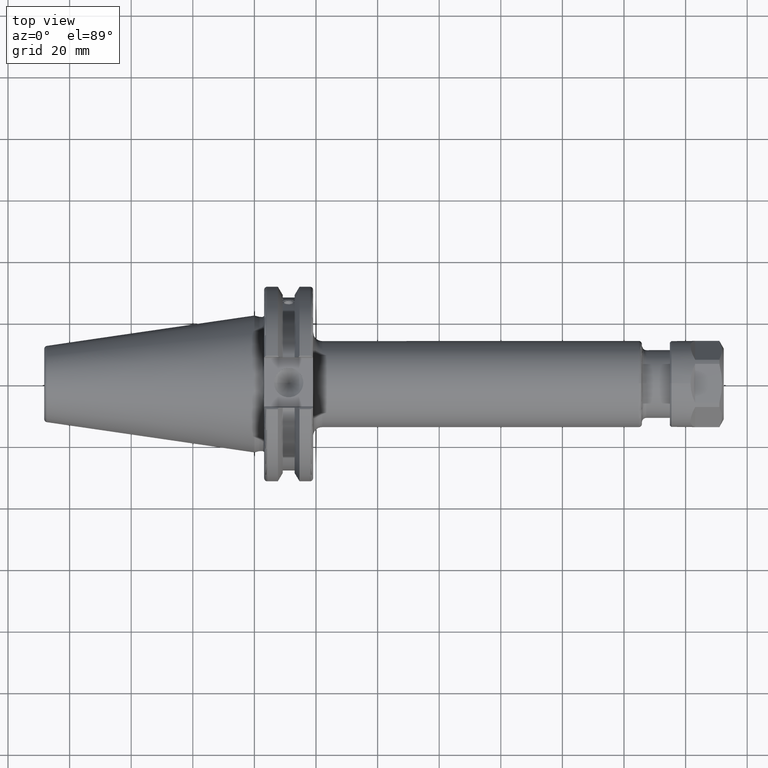
[diagram: clean part render]
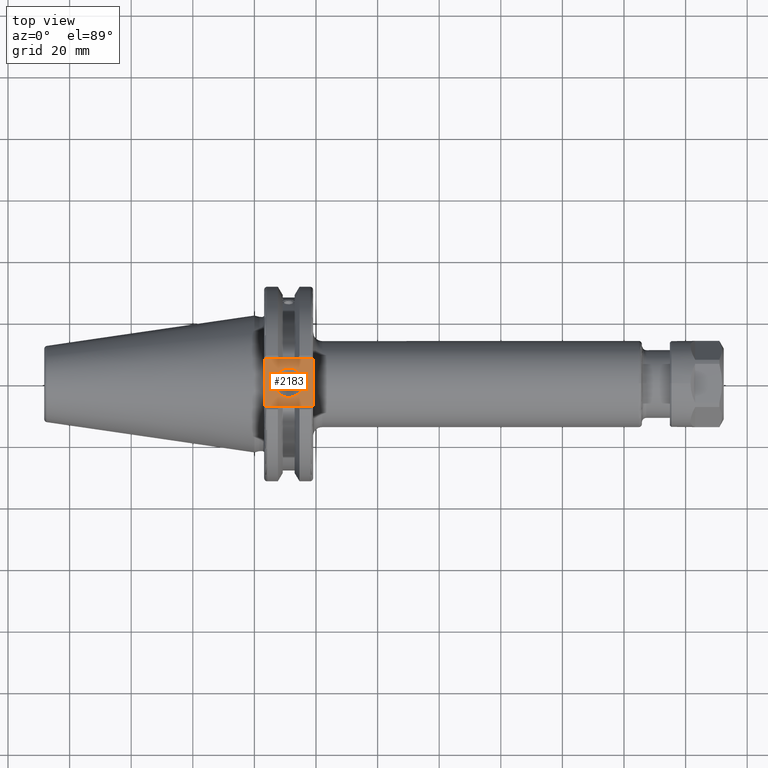
[diagram: same view with one face highlighted and labeled with its STEP entity id]
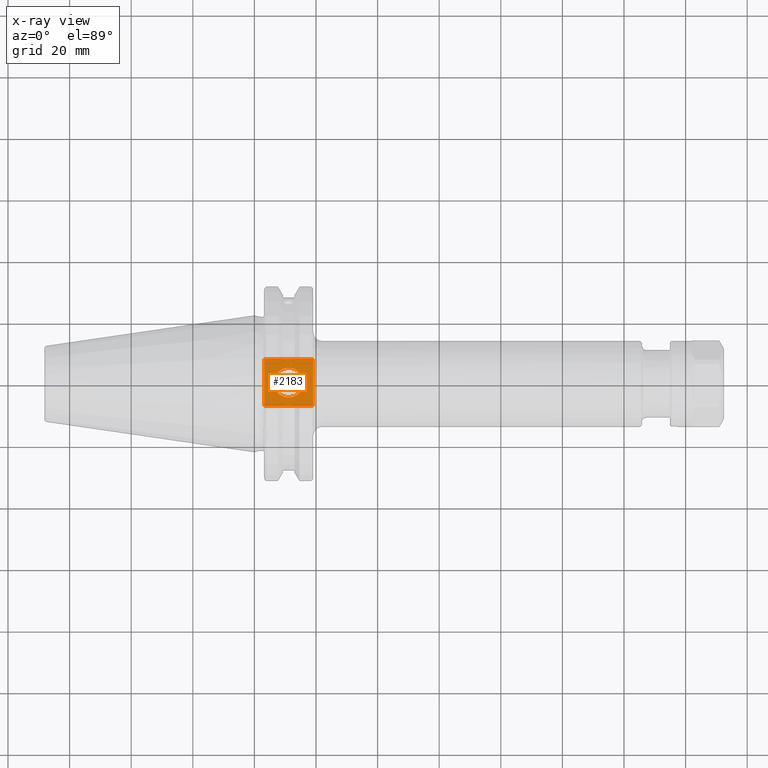
[diagram: x-ray of the same camera — body ghosted, the highlighted face saturated]
A machine part, top view. The second image highlights one B-rep face of the part: STEP entity #2183.
The next image is the same camera in x-ray: the body ghosted, the highlighted face saturated — about 0% of this face is hidden behind the body in this view.
In plain terms, the highlighted planar face has unit normal (0, 0, 1).
Its self-contained STEP definition (entity closure, byte-faithful):
#168=FACE_BOUND('',#491,.T.);
#211=PLANE('',#2477);
#353=FACE_OUTER_BOUND('',#490,.T.);
#490=EDGE_LOOP('',(#1899,#1900,#1901,#1902));
#491=EDGE_LOOP('',(#1903));
#546=LINE('',#3369,#678);
#586=LINE('',#3709,#718);
#617=LINE('',#3944,#749);
#619=LINE('',#3947,#751);
#678=VECTOR('',#2651,10.);
#718=VECTOR('',#2849,10.);
#749=VECTOR('',#2946,10.);
#751=VECTOR('',#2950,10.);
#872=CIRCLE('',#2462,4.7625);
#939=VERTEX_POINT('',#3366);
#940=VERTEX_POINT('',#3368);
#1018=VERTEX_POINT('',#3706);
#1019=VERTEX_POINT('',#3708);
#1065=VERTEX_POINT('',#3977);
#1161=EDGE_CURVE('',#939,#940,#546,.T.);
#1267=EDGE_CURVE('',#1018,#1019,#586,.T.);
#1333=EDGE_CURVE('',#940,#1018,#617,.T.);
#1335=EDGE_CURVE('',#1019,#939,#619,.T.);
#1347=EDGE_CURVE('',#1065,#1065,#872,.T.);
#1899=ORIENTED_EDGE('',*,*,#1333,.F.);
#1900=ORIENTED_EDGE('',*,*,#1161,.F.);
#1901=ORIENTED_EDGE('',*,*,#1335,.F.);
#1902=ORIENTED_EDGE('',*,*,#1267,.F.);
#1903=ORIENTED_EDGE('',*,*,#1347,.T.);
#2183=ADVANCED_FACE('',(#353,#168),#211,.T.);
#2462=AXIS2_PLACEMENT_3D('',#3978,#2982,#2983);
#2477=AXIS2_PLACEMENT_3D('',#3994,#3013,#3014);
#2651=DIRECTION('',(0.,-1.,0.));
#2849=DIRECTION('',(0.,1.,0.));
#2946=DIRECTION('',(-1.,1.31581988103722E-16,0.));
#2950=DIRECTION('',(1.,0.,0.));
#2982=DIRECTION('center_axis',(0.,0.,-1.));
#2983=DIRECTION('ref_axis',(1.,0.,0.));
#3013=DIRECTION('center_axis',(0.,0.,1.));
#3014=DIRECTION('ref_axis',(1.,0.,0.));
#3366=CARTESIAN_POINT('',(19.05,7.69,25.));
#3368=CARTESIAN_POINT('',(19.05,-7.69,25.));
#3369=CARTESIAN_POINT('',(19.05,0.,25.));
#3706=CARTESIAN_POINT('',(3.175,-7.68999999999999,25.));
#3708=CARTESIAN_POINT('',(3.175,7.69,25.));
#3709=CARTESIAN_POINT('',(3.175,15.875,25.));
#3944=CARTESIAN_POINT('',(9.44125,-7.69,25.));
#3947=CARTESIAN_POINT('',(17.87875,7.69,25.));
#3977=CARTESIAN_POINT('',(6.3645,-5.83238038093927E-16,25.));
#3978=CARTESIAN_POINT('Origin',(11.127,0.,25.));
#3994=CARTESIAN_POINT('Origin',(15.7075,0.,25.));